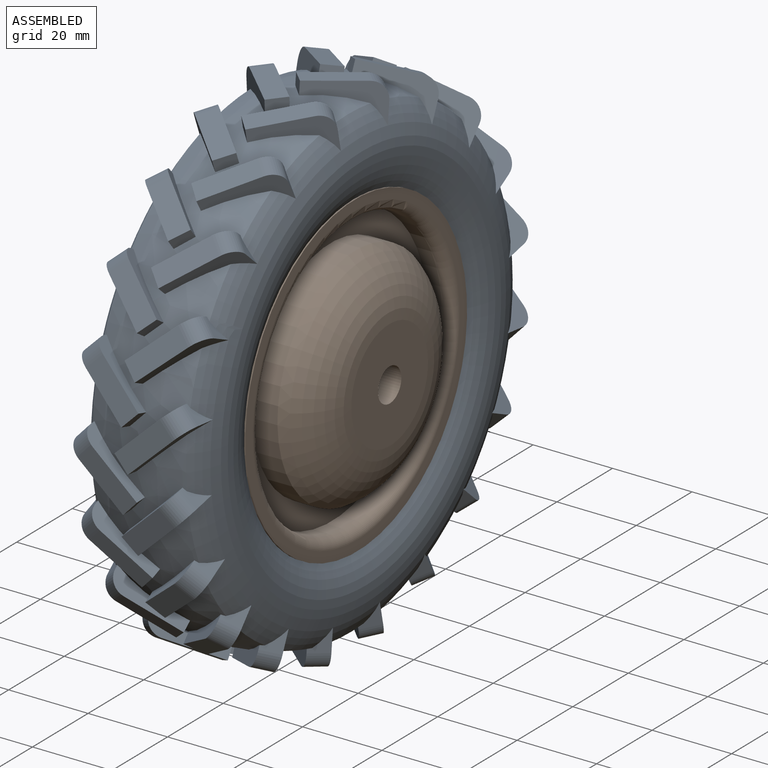
[diagram: assembled view]
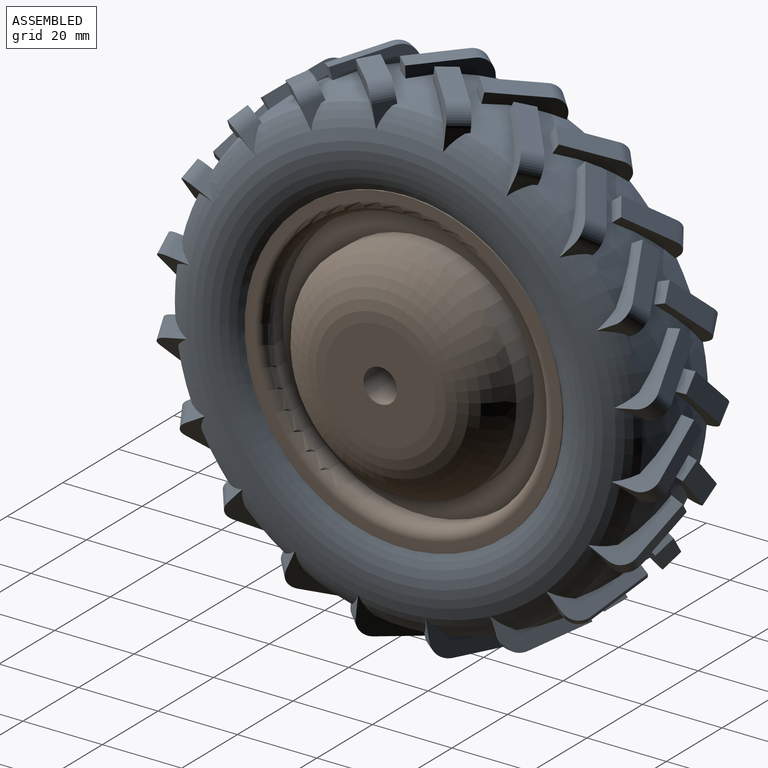
[diagram: assembled view, second angle]
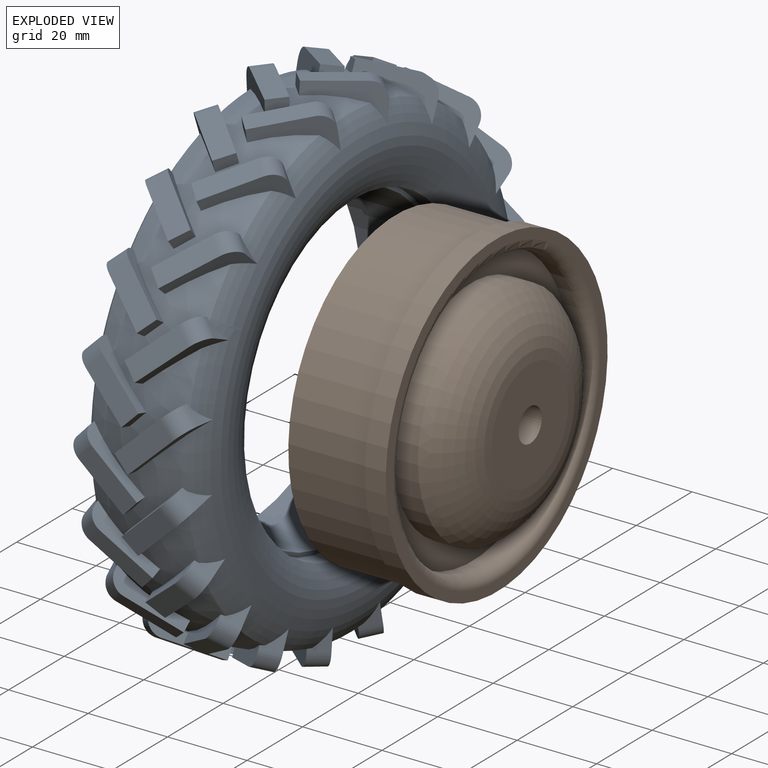
[diagram: exploded view]
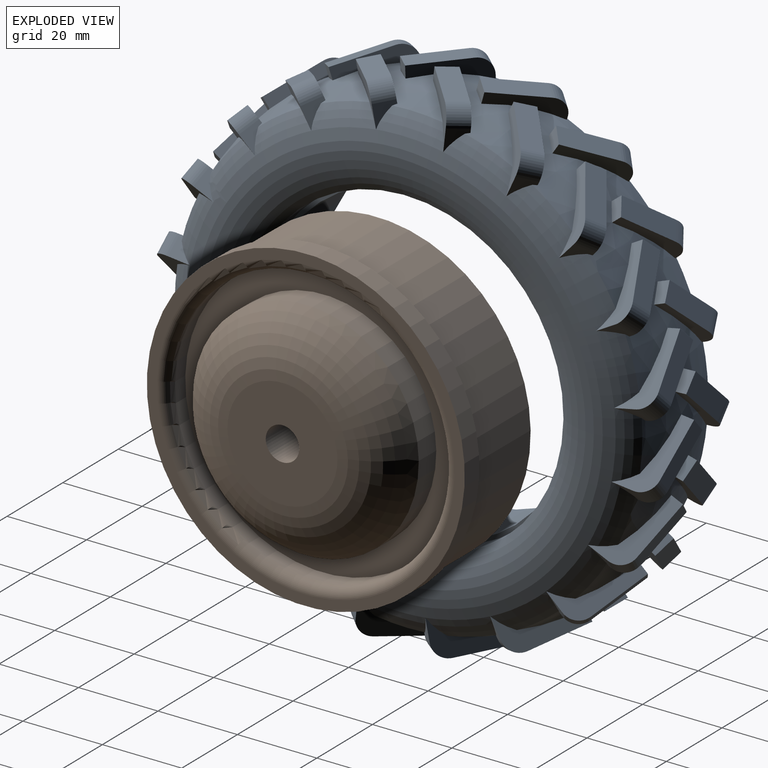
[diagram: exploded view, second angle]
ASSEMBLY  parts=2 mates=2
PART A: 250 faces, bbox 31.7x129.1x129.1 mm
  f0: torus R=48.39mm, axis (-1,0,0), area 6003.5mm2, adj f2,f4,f7,f8,f19,f20,f31,f32
  f1: cylinder r=38.92mm len=77.85mm, axis (1,0,0), area 4116.5mm2, adj f247,f249
  f2: torus R=28.4mm, axis (-1,0,0), area 5449.9mm2, adj f0,f3,f4,f5,f6,f7,f8,f9
  f3: torus R=28.4mm, axis (-1,0,0), area 4.2mm2, adj f2,f5,f195
  f4: torus R=28.4mm, axis (-1,0,0), area 0.3mm2, adj f0,f2,f175
  f5: torus R=48.39mm, axis (-1,0,0), area 6003.6mm2, adj f2,f3,f14,f15,f26,f27,f38,f39
  f6: plane 13.76x12.72mm, normal (0.69,0.11,-0.72), area 58.8mm2, adj f2,f7,f9,f10,f11
  f7: plane 5.51x4.65mm, normal (-0.73,0.11,-0.68), area 13.8mm2, adj f0,f2,f6,f8,f11
  f8: plane 13.86x12.87mm, normal (-0.69,-0.11,0.72), area 77.6mm2, adj f0,f2,f7,f9,f10,f11
  f9: plane 4.29x3.63mm, normal (0.73,-0.11,0.68), area 15.9mm2, adj f2,f6,f8,f10
  f10: plane 14.32x13.77mm, normal (0,-0.99,-0.16), area 77.5mm2, adj f6,f8,f9,f11
  f11: cylinder r=4.21mm len=6.67mm, axis (0.69,0.11,-0.72), area 34.8mm2, adj f6,f7,f8,f10
  f12: plane 3.83x3.63mm, normal (-0.73,0,0.69), area 15.9mm2, adj f2,f13,f15,f16
  f13: plane 13.76x13.01mm, normal (-0.69,0,-0.73), area 58.8mm2, adj f2,f12,f14,f16,f17
  f14: plane 5.58x3.82mm, normal (0.73,0,-0.69), area 13.8mm2, adj f2,f5,f13,f15,f17
  f15: plane 13.85x13.11mm, normal (0.69,0,0.73), area 77.6mm2, adj f2,f5,f12,f14,f16,f17
  f16: plane 14.32x13.94mm, normal (0,-1,0), area 77.5mm2, adj f12,f13,f15,f17
  f17: cylinder r=4.21mm len=6.71mm, axis (-0.69,0,-0.73), area 34.8mm2, adj f13,f14,f15,f16
  f18: plane 13.76x11.63mm, normal (0.69,0.33,-0.65), area 58.8mm2, adj f2,f19,f21,f22,f23
  f19: plane 5.94x4.97mm, normal (-0.73,0.31,-0.61), area 13.8mm2, adj f0,f2,f18,f20,f23
  f20: plane 14.72x13.86mm, normal (-0.69,-0.33,0.65), area 77.6mm2, adj f0,f2,f19,f21,f22,f23
  f21: plane 4.88x4.34mm, normal (0.73,-0.31,0.61), area 15.9mm2, adj f2,f18,f20,f22
  f22: plane 14.32x12.42mm, normal (0,-0.89,-0.45), area 77.5mm2, adj f18,f20,f21,f23
  f23: cylinder r=4.21mm len=6.8mm, axis (0.69,0.33,-0.65), area 34.8mm2, adj f18,f19,f20,f22
  f24: plane 4.64x3.96mm, normal (-0.73,-0.21,0.65), area 15.9mm2, adj f2,f25,f27,f28
  f25: plane 13.76x12.26mm, normal (-0.69,0.22,-0.69), area 58.8mm2, adj f2,f24,f26,f28,f29
  f26: plane 5.36x5.3mm, normal (0.73,0.21,-0.65), area 13.8mm2, adj f2,f5,f25,f27,f29
  f27: plane 13.85x13.42mm, normal (0.69,-0.22,0.69), area 77.6mm2, adj f2,f5,f24,f26,f28,f29
  f28: plane 14.32x13.26mm, normal (0,-0.95,-0.31), area 77.5mm2, adj f24,f25,f27,f29
  f29: cylinder r=4.21mm len=6.67mm, axis (-0.69,0.22,-0.69), area 34.8mm2, adj f25,f26,f27,f28
  f30: plane 13.76x12.87mm, normal (0.69,0.51,-0.51), area 58.8mm2, adj f2,f31,f33,f34,f35
  f31: plane 6.65x3.95mm, normal (-0.73,0.49,-0.49), area 13.8mm2, adj f0,f2,f30,f32,f35
  f32: plane 16.22x13.86mm, normal (-0.69,-0.51,0.51), area 77.6mm2, adj f0,f2,f31,f33,f34,f35
  f33: plane 5x4.77mm, normal (0.73,-0.49,0.49), area 15.9mm2, adj f2,f30,f32,f34
  f34: plane 14.32x9.86mm, normal (0,-0.71,-0.71), area 77.5mm2, adj f30,f32,f33,f35
  f35: cylinder r=4.21mm len=7.72mm, axis (0.69,0.51,-0.51), area 34.8mm2, adj f30,f31,f32,f34
  f36: plane 5x4.61mm, normal (-0.73,-0.4,0.56), area 15.9mm2, adj f2,f37,f39,f40
  f37: plane 13.76x11.84mm, normal (-0.69,0.43,-0.59), area 58.8mm2, adj f2,f36,f38,f40,f41
  f38: plane 6.37x4.51mm, normal (0.73,0.4,-0.56), area 13.8mm2, adj f2,f5,f37,f39,f41
  f39: plane 15.66x13.85mm, normal (0.69,-0.43,0.59), area 77.6mm2, adj f2,f5,f36,f38,f40,f41
  f40: plane 14.32x11.28mm, normal (0,-0.81,-0.59), area 77.5mm2, adj f36,f37,f39,f41
  f41: cylinder r=4.21mm len=7.35mm, axis (-0.69,0.43,-0.59), area 34.8mm2, adj f37,f38,f39,f40
  f42: plane 13.95x13.76mm, normal (0.69,0.65,-0.33), area 58.8mm2, adj f2,f43,f45,f46,f47
  f43: plane 6.71x3.85mm, normal (-0.73,0.61,-0.31), area 13.8mm2, adj f0,f2,f42,f44,f47
  f44: plane 16.14x13.86mm, normal (-0.69,-0.65,0.33), area 77.6mm2, adj f0,f2,f43,f45,f46,f47
  f45: plane 4.74x4.62mm, normal (0.73,-0.61,0.31), area 15.9mm2, adj f2,f42,f44,f46
  f46: plane 14.32x12.42mm, normal (0,-0.45,-0.89), area 77.5mm2, adj f42,f44,f45,f47
  f47: cylinder r=4.21mm len=7.89mm, axis (0.69,0.65,-0.33), area 34.8mm2, adj f42,f43,f44,f46
  f48: plane 4.87x4.81mm, normal (-0.73,-0.56,0.4), area 15.9mm2, adj f2,f49,f51,f52
  f49: plane 13.76x13.57mm, normal (-0.69,0.59,-0.43), area 58.8mm2, adj f2,f48,f50,f52,f53
  f50: plane 6.76x3.67mm, normal (0.73,0.56,-0.4), area 13.8mm2, adj f2,f5,f49,f51,f53
  f51: plane 16.37x13.85mm, normal (0.69,-0.59,0.43), area 77.6mm2, adj f2,f5,f48,f50,f52,f53
  f52: plane 14.32x11.28mm, normal (0,-0.59,-0.81), area 77.5mm2, adj f48,f49,f51,f53
  f53: cylinder r=4.21mm len=7.9mm, axis (-0.69,0.59,-0.43), area 34.8mm2, adj f49,f50,f51,f52
  f54: plane 13.76x13.66mm, normal (0.69,0.72,-0.11), area 58.8mm2, adj f2,f55,f57,f58,f59
  f55: plane 6.11x3.93mm, normal (-0.73,0.68,-0.11), area 13.8mm2, adj f0,f2,f54,f56,f59
  f56: plane 14.48x13.86mm, normal (-0.69,-0.72,0.11), area 77.6mm2, adj f0,f2,f55,f57,f58,f59
  f57: plane 4.24x3.8mm, normal (0.73,-0.68,0.11), area 15.9mm2, adj f2,f54,f56,f58
  f58: plane 14.32x13.77mm, normal (0,-0.16,-0.99), area 77.5mm2, adj f54,f56,f57,f59
  f59: cylinder r=4.21mm len=7.29mm, axis (0.69,0.72,-0.11), area 34.8mm2, adj f54,f55,f56,f58
  f60: plane 4.55x4.26mm, normal (-0.73,-0.65,0.21), area 15.9mm2, adj f2,f61,f63,f64
  f61: plane 13.98x13.76mm, normal (-0.69,0.69,-0.22), area 58.8mm2, adj f2,f60,f62,f64,f65
  f62: plane 6.49x3.94mm, normal (0.73,0.65,-0.21), area 13.8mm2, adj f2,f5,f61,f63,f65
  f63: plane 15.49x13.85mm, normal (0.69,-0.69,0.22), area 77.6mm2, adj f2,f5,f60,f62,f64,f65
  f64: plane 14.32x13.26mm, normal (0,-0.31,-0.95), area 77.5mm2, adj f60,f61,f63,f65
  f65: cylinder r=4.21mm len=7.69mm, axis (-0.69,0.69,-0.22), area 34.8mm2, adj f61,f62,f63,f64
  f66: plane 13.76x12.72mm, normal (0.69,0.72,0.11), area 58.8mm2, adj f2,f67,f69,f70,f71
  f67: plane 5.51x4.65mm, normal (-0.73,0.68,0.11), area 13.8mm2, adj f0,f2,f66,f68,f71
  f68: plane 13.86x12.87mm, normal (-0.69,-0.72,-0.11), area 77.6mm2, adj f0,f2,f67,f69,f70,f71
  f69: plane 4.29x3.63mm, normal (0.73,-0.68,-0.11), area 15.9mm2, adj f2,f66,f68,f70
  f70: plane 14.32x13.77mm, normal (0,0.16,-0.99), area 77.5mm2, adj f66,f68,f69,f71
  f71: cylinder r=4.21mm len=6.67mm, axis (0.69,0.72,0.11), area 34.8mm2, adj f66,f67,f68,f70
  f72: plane 3.83x3.63mm, normal (-0.73,-0.69,0), area 15.9mm2, adj f2,f73,f75,f76
  f73: plane 13.76x13.01mm, normal (-0.69,0.73,0), area 58.8mm2, adj f2,f72,f74,f76,f77
  f74: plane 5.58x3.82mm, normal (0.73,0.69,0), area 13.8mm2, adj f2,f5,f73,f75,f77
  f75: plane 13.85x13.11mm, normal (0.69,-0.73,0), area 77.6mm2, adj f2,f5,f72,f74,f76,f77
  f76: plane 14.32x13.94mm, normal (0,0,-1), area 77.5mm2, adj f72,f73,f75,f77
  f77: cylinder r=4.21mm len=6.71mm, axis (-0.69,0.73,0), area 34.8mm2, adj f73,f74,f75,f76
  f78: plane 13.76x11.63mm, normal (0.69,0.65,0.33), area 58.8mm2, adj f2,f79,f81,f82,f83
  f79: plane 5.94x4.97mm, normal (-0.73,0.61,0.31), area 13.8mm2, adj f0,f2,f78,f80,f83
  f80: plane 14.72x13.86mm, normal (-0.69,-0.65,-0.33), area 77.6mm2, adj f0,f2,f79,f81,f82,f83
  f81: plane 4.88x4.34mm, normal (0.73,-0.61,-0.31), area 15.9mm2, adj f2,f78,f80,f82
  f82: plane 14.32x12.42mm, normal (0,0.45,-0.89), area 77.5mm2, adj f78,f80,f81,f83
  f83: cylinder r=4.21mm len=6.8mm, axis (0.69,0.65,0.33), area 34.8mm2, adj f78,f79,f80,f82
  f84: plane 4.64x3.96mm, normal (-0.73,-0.65,-0.21), area 15.9mm2, adj f2,f85,f87,f88
  f85: plane 13.76x12.26mm, normal (-0.69,0.69,0.22), area 58.8mm2, adj f2,f84,f86,f88,f89
  f86: plane 5.36x5.3mm, normal (0.73,0.65,0.21), area 13.8mm2, adj f2,f5,f85,f87,f89
  f87: plane 13.85x13.42mm, normal (0.69,-0.69,-0.22), area 77.6mm2, adj f2,f5,f84,f86,f88,f89
  f88: plane 14.32x13.26mm, normal (0,0.31,-0.95), area 77.5mm2, adj f84,f85,f87,f89
  f89: cylinder r=4.21mm len=6.67mm, axis (-0.69,0.69,0.22), area 34.8mm2, adj f85,f86,f87,f88
  f90: plane 13.76x12.87mm, normal (0.69,0.51,0.51), area 58.8mm2, adj f2,f91,f93,f94,f95
  f91: plane 6.65x3.95mm, normal (-0.73,0.49,0.49), area 13.8mm2, adj f0,f2,f90,f92,f95
  f92: plane 16.22x13.86mm, normal (-0.69,-0.51,-0.51), area 77.6mm2, adj f0,f2,f91,f93,f94,f95
  f93: plane 5x4.77mm, normal (0.73,-0.49,-0.49), area 15.9mm2, adj f2,f90,f92,f94
  f94: plane 14.32x9.86mm, normal (0,0.71,-0.71), area 77.5mm2, adj f90,f92,f93,f95
  f95: cylinder r=4.21mm len=7.72mm, axis (0.69,0.51,0.51), area 34.8mm2, adj f90,f91,f92,f94
  f96: plane 5x4.61mm, normal (-0.73,-0.56,-0.4), area 15.9mm2, adj f2,f97,f99,f100
  f97: plane 13.76x11.84mm, normal (-0.69,0.59,0.43), area 58.8mm2, adj f2,f96,f98,f100,f101
  f98: plane 6.37x4.51mm, normal (0.73,0.56,0.4), area 13.8mm2, adj f2,f5,f97,f99,f101
  f99: plane 15.66x13.85mm, normal (0.69,-0.59,-0.43), area 77.6mm2, adj f2,f5,f96,f98,f100,f101
  f100: plane 14.32x11.28mm, normal (0,0.59,-0.81), area 77.5mm2, adj f96,f97,f99,f101
  f101: cylinder r=4.21mm len=7.35mm, axis (-0.69,0.59,0.43), area 34.8mm2, adj f97,f98,f99,f100
  f102: plane 13.95x13.76mm, normal (0.69,0.33,0.65), area 58.8mm2, adj f2,f103,f105,f106,f107
  f103: plane 6.71x3.85mm, normal (-0.73,0.31,0.61), area 13.8mm2, adj f0,f2,f102,f104,f107
  f104: plane 16.14x13.86mm, normal (-0.69,-0.33,-0.65), area 77.6mm2, adj f0,f2,f103,f105,f106,f107
  f105: plane 4.74x4.62mm, normal (0.73,-0.31,-0.61), area 15.9mm2, adj f2,f102,f104,f106
  f106: plane 14.32x12.42mm, normal (0,0.89,-0.45), area 77.5mm2, adj f102,f104,f105,f107
  f107: cylinder r=4.21mm len=7.89mm, axis (0.69,0.33,0.65), area 34.8mm2, adj f102,f103,f104,f106
  f108: plane 4.87x4.81mm, normal (-0.73,-0.4,-0.56), area 15.9mm2, adj f2,f109,f111,f112
  f109: plane 13.76x13.57mm, normal (-0.69,0.43,0.59), area 58.8mm2, adj f2,f108,f110,f112,f113
  f110: plane 6.76x3.67mm, normal (0.73,0.4,0.56), area 13.8mm2, adj f2,f5,f109,f111,f113
  f111: plane 16.37x13.85mm, normal (0.69,-0.43,-0.59), area 77.6mm2, adj f2,f5,f108,f110,f112,f113
  f112: plane 14.32x11.28mm, normal (0,0.81,-0.59), area 77.5mm2, adj f108,f109,f111,f113
  f113: cylinder r=4.21mm len=7.9mm, axis (-0.69,0.43,0.59), area 34.8mm2, adj f109,f110,f111,f112
  f114: plane 13.76x13.66mm, normal (0.69,0.11,0.72), area 58.8mm2, adj f2,f115,f117,f118,f119
  f115: plane 6.11x3.93mm, normal (-0.73,0.11,0.68), area 13.8mm2, adj f0,f2,f114,f116,f119
  f116: plane 14.48x13.86mm, normal (-0.69,-0.11,-0.72), area 77.6mm2, adj f0,f2,f115,f117,f118,f119
  f117: plane 4.24x3.8mm, normal (0.73,-0.11,-0.68), area 15.9mm2, adj f2,f114,f116,f118
  f118: plane 14.32x13.77mm, normal (0,0.99,-0.16), area 77.5mm2, adj f114,f116,f117,f119
  f119: cylinder r=4.21mm len=7.29mm, axis (0.69,0.11,0.72), area 34.8mm2, adj f114,f115,f116,f118
  f120: plane 4.55x4.26mm, normal (-0.73,-0.21,-0.65), area 15.9mm2, adj f2,f121,f123,f124
  f121: plane 13.98x13.76mm, normal (-0.69,0.22,0.69), area 58.8mm2, adj f2,f120,f122,f124,f125
  f122: plane 6.49x3.94mm, normal (0.73,0.21,0.65), area 13.8mm2, adj f2,f5,f121,f123,f125
  f123: plane 15.49x13.85mm, normal (0.69,-0.22,-0.69), area 77.6mm2, adj f2,f5,f120,f122,f124,f125
  f124: plane 14.32x13.26mm, normal (0,0.95,-0.31), area 77.5mm2, adj f120,f121,f123,f125
  f125: cylinder r=4.21mm len=7.69mm, axis (-0.69,0.22,0.69), area 34.8mm2, adj f121,f122,f123,f124
  f126: plane 13.76x12.72mm, normal (0.69,-0.11,0.72), area 58.8mm2, adj f2,f127,f129,f130,f131
  f127: plane 5.51x4.65mm, normal (-0.73,-0.11,0.68), area 13.8mm2, adj f0,f2,f126,f128,f131
  f128: plane 13.86x12.87mm, normal (-0.69,0.11,-0.72), area 77.6mm2, adj f0,f2,f127,f129,f130,f131
  f129: plane 4.29x3.63mm, normal (0.73,0.11,-0.68), area 15.9mm2, adj f2,f126,f128,f130
  f130: plane 14.32x13.77mm, normal (0,0.99,0.16), area 77.5mm2, adj f126,f128,f129,f131
  f131: cylinder r=4.21mm len=6.67mm, axis (0.69,-0.11,0.72), area 34.8mm2, adj f126,f127,f128,f130
  f132: plane 3.83x3.63mm, normal (-0.73,0,-0.69), area 15.9mm2, adj f2,f133,f135,f136
  f133: plane 13.76x13.01mm, normal (-0.69,0,0.73), area 58.8mm2, adj f2,f132,f134,f136,f137
  f134: plane 5.58x3.82mm, normal (0.73,0,0.69), area 13.8mm2, adj f2,f5,f133,f135,f137
  f135: plane 13.85x13.11mm, normal (0.69,0,-0.73), area 77.6mm2, adj f2,f5,f132,f134,f136,f137
  f136: plane 14.32x13.94mm, normal (0,1,0), area 77.5mm2, adj f132,f133,f135,f137
  f137: cylinder r=4.21mm len=6.71mm, axis (-0.69,0,0.73), area 34.8mm2, adj f133,f134,f135,f136
  f138: plane 13.76x11.63mm, normal (0.69,-0.33,0.65), area 58.8mm2, adj f2,f139,f141,f142,f143
  f139: plane 5.94x4.97mm, normal (-0.73,-0.31,0.61), area 13.8mm2, adj f0,f2,f138,f140,f143
  f140: plane 14.72x13.86mm, normal (-0.69,0.33,-0.65), area 77.6mm2, adj f0,f2,f139,f141,f142,f143
  f141: plane 4.88x4.34mm, normal (0.73,0.31,-0.61), area 15.9mm2, adj f2,f138,f140,f142
  f142: plane 14.32x12.42mm, normal (0,0.89,0.45), area 77.5mm2, adj f138,f140,f141,f143
  f143: cylinder r=4.21mm len=6.8mm, axis (0.69,-0.33,0.65), area 34.8mm2, adj f138,f139,f140,f142
  f144: plane 4.64x3.96mm, normal (-0.73,0.21,-0.65), area 15.9mm2, adj f2,f145,f147,f148
  f145: plane 13.76x12.26mm, normal (-0.69,-0.22,0.69), area 58.8mm2, adj f2,f144,f146,f148,f149
  f146: plane 5.36x5.3mm, normal (0.73,-0.21,0.65), area 13.8mm2, adj f2,f5,f145,f147,f149
  f147: plane 13.85x13.42mm, normal (0.69,0.22,-0.69), area 77.6mm2, adj f2,f5,f144,f146,f148,f149
  f148: plane 14.32x13.26mm, normal (0,0.95,0.31), area 77.5mm2, adj f144,f145,f147,f149
  f149: cylinder r=4.21mm len=6.67mm, axis (-0.69,-0.22,0.69), area 34.8mm2, adj f145,f146,f147,f148
  f150: plane 13.76x12.87mm, normal (0.69,-0.51,0.51), area 58.8mm2, adj f2,f151,f153,f154,f155
  f151: plane 6.65x3.95mm, normal (-0.73,-0.49,0.49), area 13.8mm2, adj f0,f2,f150,f152,f155
  f152: plane 16.22x13.86mm, normal (-0.69,0.51,-0.51), area 77.6mm2, adj f0,f2,f151,f153,f154,f155
  f153: plane 5x4.77mm, normal (0.73,0.49,-0.49), area 15.9mm2, adj f2,f150,f152,f154
  f154: plane 14.32x9.86mm, normal (0,0.71,0.71), area 77.5mm2, adj f150,f152,f153,f155
  f155: cylinder r=4.21mm len=7.72mm, axis (0.69,-0.51,0.51), area 34.8mm2, adj f150,f151,f152,f154
  f156: plane 5x4.61mm, normal (-0.73,0.4,-0.56), area 15.9mm2, adj f2,f157,f159,f160
  f157: plane 13.76x11.84mm, normal (-0.69,-0.43,0.59), area 58.8mm2, adj f2,f156,f158,f160,f161
  f158: plane 6.37x4.51mm, normal (0.73,-0.4,0.56), area 13.8mm2, adj f2,f5,f157,f159,f161
  f159: plane 15.66x13.85mm, normal (0.69,0.43,-0.59), area 77.6mm2, adj f2,f5,f156,f158,f160,f161
  f160: plane 14.32x11.28mm, normal (0,0.81,0.59), area 77.5mm2, adj f156,f157,f159,f161
  f161: cylinder r=4.21mm len=7.35mm, axis (-0.69,-0.43,0.59), area 34.8mm2, adj f157,f158,f159,f160
  f162: plane 13.95x13.76mm, normal (0.69,-0.65,0.33), area 58.8mm2, adj f2,f163,f165,f166,f167
  f163: plane 6.71x3.85mm, normal (-0.73,-0.61,0.31), area 13.8mm2, adj f0,f2,f162,f164,f167
  f164: plane 16.14x13.86mm, normal (-0.69,0.65,-0.33), area 77.6mm2, adj f0,f2,f163,f165,f166,f167
  f165: plane 4.74x4.62mm, normal (0.73,0.61,-0.31), area 15.9mm2, adj f2,f162,f164,f166
  f166: plane 14.32x12.42mm, normal (0,0.45,0.89), area 77.5mm2, adj f162,f164,f165,f167
  f167: cylinder r=4.21mm len=7.89mm, axis (0.69,-0.65,0.33), area 34.8mm2, adj f162,f163,f164,f166
  f168: plane 4.87x4.81mm, normal (-0.73,0.56,-0.4), area 15.9mm2, adj f2,f169,f171,f172
  f169: plane 13.76x13.57mm, normal (-0.69,-0.59,0.43), area 58.8mm2, adj f2,f168,f170,f172,f173
  f170: plane 6.76x3.67mm, normal (0.73,-0.56,0.4), area 13.8mm2, adj f2,f5,f169,f171,f173
  f171: plane 16.37x13.85mm, normal (0.69,0.59,-0.43), area 77.6mm2, adj f2,f5,f168,f170,f172,f173
  f172: plane 14.32x11.28mm, normal (0,0.59,0.81), area 77.5mm2, adj f168,f169,f171,f173
  f173: cylinder r=4.21mm len=7.9mm, axis (-0.69,-0.59,0.43), area 34.8mm2, adj f169,f170,f171,f172
  f174: plane 13.76x13.66mm, normal (0.69,-0.72,0.11), area 58.8mm2, adj f2,f175,f177,f178,f179
  f175: plane 6.11x3.93mm, normal (-0.73,-0.68,0.11), area 13.8mm2, adj f0,f4,f174,f176,f179
  f176: plane 14.48x13.86mm, normal (-0.69,0.72,-0.11), area 77.6mm2, adj f0,f2,f175,f177,f178,f179
  f177: plane 4.24x3.8mm, normal (0.73,0.68,-0.11), area 15.9mm2, adj f2,f174,f176,f178
  f178: plane 14.32x13.77mm, normal (0,0.16,0.99), area 77.5mm2, adj f174,f176,f177,f179
  f179: cylinder r=4.21mm len=7.29mm, axis (0.69,-0.72,0.11), area 34.8mm2, adj f174,f175,f176,f178
  f180: plane 4.55x4.26mm, normal (-0.73,0.65,-0.21), area 15.9mm2, adj f2,f181,f183,f184
  f181: plane 13.98x13.76mm, normal (-0.69,-0.69,0.22), area 58.8mm2, adj f2,f180,f182,f184,f185
  f182: plane 6.49x3.94mm, normal (0.73,-0.65,0.21), area 13.8mm2, adj f2,f5,f181,f183,f185
  f183: plane 15.49x13.85mm, normal (0.69,0.69,-0.22), area 77.6mm2, adj f2,f5,f180,f182,f184,f185
  f184: plane 14.32x13.26mm, normal (0,0.31,0.95), area 77.5mm2, adj f180,f181,f183,f185
  f185: cylinder r=4.21mm len=7.69mm, axis (-0.69,-0.69,0.22), area 34.8mm2, adj f181,f182,f183,f184
  f186: plane 13.76x12.72mm, normal (0.69,-0.72,-0.11), area 58.8mm2, adj f2,f187,f189,f190,f191
  f187: plane 5.51x4.65mm, normal (-0.73,-0.68,-0.11), area 13.8mm2, adj f0,f2,f186,f188,f191
  f188: plane 13.86x12.87mm, normal (-0.69,0.72,0.11), area 77.6mm2, adj f0,f2,f187,f189,f190,f191
  f189: plane 4.29x3.63mm, normal (0.73,0.68,0.11), area 15.9mm2, adj f2,f186,f188,f190
  f190: plane 14.32x13.77mm, normal (0,-0.16,0.99), area 77.5mm2, adj f186,f188,f189,f191
  f191: cylinder r=4.21mm len=6.67mm, axis (0.69,-0.72,-0.11), area 34.8mm2, adj f186,f187,f188,f190
  f192: plane 3.83x3.63mm, normal (-0.73,0.69,0), area 15.9mm2, adj f2,f193,f195,f196
  f193: plane 13.78x13.03mm, normal (-0.69,-0.73,0), area 58.8mm2, adj f2,f192,f194,f196,f197
  f194: plane 5.58x3.82mm, normal (0.73,-0.69,0), area 13.8mm2, adj f2,f5,f193,f195,f197
  f195: plane 13.8x13.05mm, normal (0.69,0.73,0), area 77.6mm2, adj f2,f3,f5,f192,f194,f196,f197
  f196: plane 14.32x13.94mm, normal (0,0,1), area 77.5mm2, adj f192,f193,f195,f197
  f197: cylinder r=4.21mm len=6.71mm, axis (-0.69,-0.73,0), area 34.8mm2, adj f193,f194,f195,f196
  f198: plane 13.76x11.63mm, normal (0.69,-0.65,-0.33), area 58.8mm2, adj f2,f199,f201,f202,f203
  f199: plane 5.94x4.97mm, normal (-0.73,-0.61,-0.31), area 13.8mm2, adj f0,f2,f198,f200,f203
  f200: plane 14.72x13.86mm, normal (-0.69,0.65,0.33), area 77.6mm2, adj f0,f2,f199,f201,f202,f203
  f201: plane 4.88x4.34mm, normal (0.73,0.61,0.31), area 15.9mm2, adj f2,f198,f200,f202
  f202: plane 14.32x12.42mm, normal (0,-0.45,0.89), area 77.5mm2, adj f198,f200,f201,f203
  f203: cylinder r=4.21mm len=6.8mm, axis (0.69,-0.65,-0.33), area 34.8mm2, adj f198,f199,f200,f202
  f204: plane 4.64x3.96mm, normal (-0.73,0.65,0.21), area 15.9mm2, adj f2,f205,f207,f208
  f205: plane 13.76x12.26mm, normal (-0.69,-0.69,-0.22), area 58.8mm2, adj f2,f204,f206,f208,f209
  f206: plane 5.36x5.3mm, normal (0.73,-0.65,-0.21), area 13.8mm2, adj f2,f5,f205,f207,f209
  f207: plane 13.85x13.42mm, normal (0.69,0.69,0.22), area 77.6mm2, adj f2,f5,f204,f206,f208,f209
  f208: plane 14.32x13.26mm, normal (0,-0.31,0.95), area 77.5mm2, adj f204,f205,f207,f209
  f209: cylinder r=4.21mm len=6.67mm, axis (-0.69,-0.69,-0.22), area 34.8mm2, adj f205,f206,f207,f208
  f210: plane 13.76x12.87mm, normal (0.69,-0.51,-0.51), area 58.8mm2, adj f2,f211,f213,f214,f215
  f211: plane 6.65x3.95mm, normal (-0.73,-0.49,-0.49), area 13.8mm2, adj f0,f2,f210,f212,f215
  f212: plane 16.22x13.86mm, normal (-0.69,0.51,0.51), area 77.6mm2, adj f0,f2,f211,f213,f214,f215
  f213: plane 5x4.77mm, normal (0.73,0.49,0.49), area 15.9mm2, adj f2,f210,f212,f214
  f214: plane 14.32x9.86mm, normal (0,-0.71,0.71), area 77.5mm2, adj f210,f212,f213,f215
  f215: cylinder r=4.21mm len=7.72mm, axis (0.69,-0.51,-0.51), area 34.8mm2, adj f210,f211,f212,f214
  f216: plane 5x4.61mm, normal (-0.73,0.56,0.4), area 15.9mm2, adj f2,f217,f219,f220
  f217: plane 13.76x11.84mm, normal (-0.69,-0.59,-0.43), area 58.8mm2, adj f2,f216,f218,f220,f221
  f218: plane 6.37x4.51mm, normal (0.73,-0.56,-0.4), area 13.8mm2, adj f2,f5,f217,f219,f221
  f219: plane 15.66x13.85mm, normal (0.69,0.59,0.43), area 77.6mm2, adj f2,f5,f216,f218,f220,f221
  f220: plane 14.32x11.28mm, normal (0,-0.59,0.81), area 77.5mm2, adj f216,f217,f219,f221
  f221: cylinder r=4.21mm len=7.35mm, axis (-0.69,-0.59,-0.43), area 34.8mm2, adj f217,f218,f219,f220
  f222: plane 13.95x13.76mm, normal (0.69,-0.33,-0.65), area 58.8mm2, adj f2,f223,f225,f226,f227
  f223: plane 6.71x3.85mm, normal (-0.73,-0.31,-0.61), area 13.8mm2, adj f0,f2,f222,f224,f227
  f224: plane 16.14x13.86mm, normal (-0.69,0.33,0.65), area 77.6mm2, adj f0,f2,f223,f225,f226,f227
  f225: plane 4.74x4.62mm, normal (0.73,0.31,0.61), area 15.9mm2, adj f2,f222,f224,f226
  f226: plane 14.32x12.42mm, normal (0,-0.89,0.45), area 77.5mm2, adj f222,f224,f225,f227
  f227: cylinder r=4.21mm len=7.89mm, axis (0.69,-0.33,-0.65), area 34.8mm2, adj f222,f223,f224,f226
  f228: plane 4.87x4.81mm, normal (-0.73,0.4,0.56), area 15.9mm2, adj f2,f229,f231,f232
  f229: plane 13.76x13.57mm, normal (-0.69,-0.43,-0.59), area 58.8mm2, adj f2,f228,f230,f232,f233
  f230: plane 6.76x3.67mm, normal (0.73,-0.4,-0.56), area 13.8mm2, adj f2,f5,f229,f231,f233
  f231: plane 16.37x13.85mm, normal (0.69,0.43,0.59), area 77.6mm2, adj f2,f5,f228,f230,f232,f233
  f232: plane 14.32x11.28mm, normal (0,-0.81,0.59), area 77.5mm2, adj f228,f229,f231,f233
  f233: cylinder r=4.21mm len=7.9mm, axis (-0.69,-0.43,-0.59), area 34.8mm2, adj f229,f230,f231,f232
  f234: plane 13.76x13.66mm, normal (0.69,-0.11,-0.72), area 58.8mm2, adj f2,f235,f237,f238,f239
  f235: plane 6.11x3.93mm, normal (-0.73,-0.11,-0.68), area 13.8mm2, adj f0,f2,f234,f236,f239
  f236: plane 14.48x13.86mm, normal (-0.69,0.11,0.72), area 77.6mm2, adj f0,f2,f235,f237,f238,f239
  f237: plane 4.24x3.8mm, normal (0.73,0.11,0.68), area 15.9mm2, adj f2,f234,f236,f238
  f238: plane 14.32x13.77mm, normal (0,-0.99,0.16), area 77.5mm2, adj f234,f236,f237,f239
  f239: cylinder r=4.21mm len=7.29mm, axis (0.69,-0.11,-0.72), area 34.8mm2, adj f234,f235,f236,f238
  f240: plane 4.55x4.26mm, normal (-0.73,0.21,0.65), area 15.9mm2, adj f2,f241,f243,f244
  f241: plane 13.98x13.76mm, normal (-0.69,-0.22,-0.69), area 58.8mm2, adj f2,f240,f242,f244,f245
  f242: plane 6.49x3.94mm, normal (0.73,-0.21,-0.65), area 13.8mm2, adj f2,f5,f241,f243,f245
  f243: plane 15.49x13.85mm, normal (0.69,0.22,0.69), area 77.6mm2, adj f2,f5,f240,f242,f244,f245
  f244: plane 14.32x13.26mm, normal (0,-0.95,0.31), area 77.5mm2, adj f240,f241,f243,f245
  f245: cylinder r=4.21mm len=7.69mm, axis (-0.69,-0.22,-0.69), area 34.8mm2, adj f241,f242,f243,f244
  f246: cylinder r=39.98mm len=79.95mm, axis (1,0,0), area 1238.9mm2, adj f5,f247
  f247: plane 79.95x79.95mm, normal (1,0,0), area 260.8mm2, adj f1,f246
  f248: cylinder r=39.98mm len=79.95mm, axis (-1,0,0), area 1238.9mm2, adj f0,f249
  f249: plane 79.95x79.95mm, normal (-1,0,0), area 260.8mm2, adj f1,f248
PART B: 12 faces, bbox 33.7x80.8x80.8 mm
  f0: cylinder r=39.98mm len=79.95mm, axis (1,0,0), area 1321.2mm2, adj f1,f2
  f1: plane 79.95x79.95mm, normal (-1,0,0), area 260.8mm2, adj f0,f3
  f2: plane 79.95x79.95mm, normal (1,0,0), area 638.9mm2, adj f0,f11
  f3: cylinder r=38.92mm len=77.85mm, axis (1,0,0), area 4888.4mm2, adj f1,f4
  f4: plane 77.85x77.85mm, normal (-1,0,0), area 4704.1mm2, adj f3,f7
  f5: plane 27.65x27.65mm, normal (1,0,0), area 545mm2, adj f6,f7
  f6: torus R=13.83mm, axis (-1,0,0), area 2421.4mm2, adj f5,f9
  f7: cylinder r=4.21mm len=33.66mm, axis (-1,0,0), area 890.1mm2, adj f4,f5
  f8: cylinder r=34.72mm len=69.43mm, axis (1,0,0), area 803.1mm2, adj f10,f11
  f9: cylinder r=28.4mm len=56.81mm, axis (1,0,0), area 1126.5mm2, adj f6,f10
  f10: plane 69.43x69.43mm, normal (1,0,0), area 1251.7mm2, adj f8,f9
  f11: torus R=37.35mm, axis (1,0,0), area 925.9mm2, adj f2,f8
PLACE A rot(axis=(0,0.48,-0.88),179.7deg) t=(-120.51,-2550.97,3145.42)mm
PLACE B rot(axis=(-1,0,0),123.3deg) t=(-106.84,-2550.95,3145.52)mm
MATE planar B.f0 <-> A.f0  axis (-1,0,-0.01) through (-112.1,-2550.96,3145.48)mm
MATE cylindrical B.f3 <-> A.f0  axis (1,0,0.01) through (-122.09,-2550.98,3145.41)mm
